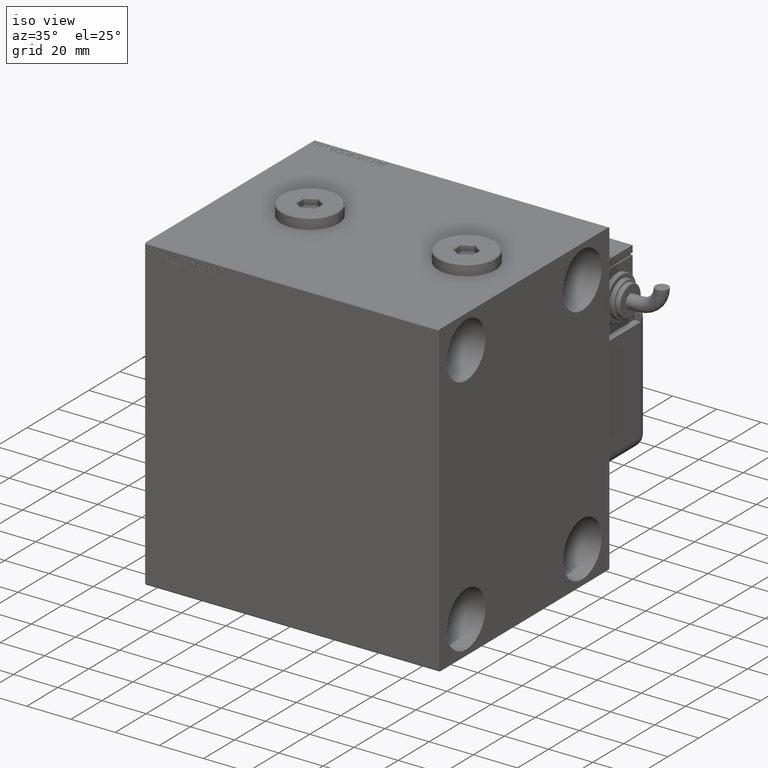
[diagram: clean part render]
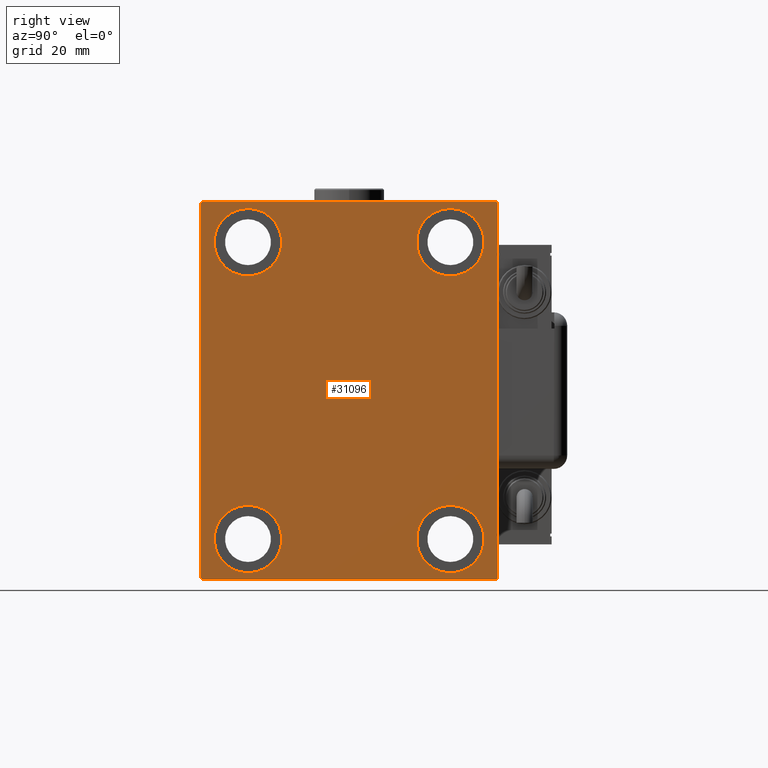
[diagram: tour spotlight — one face highlighted and labeled with its STEP entity id]
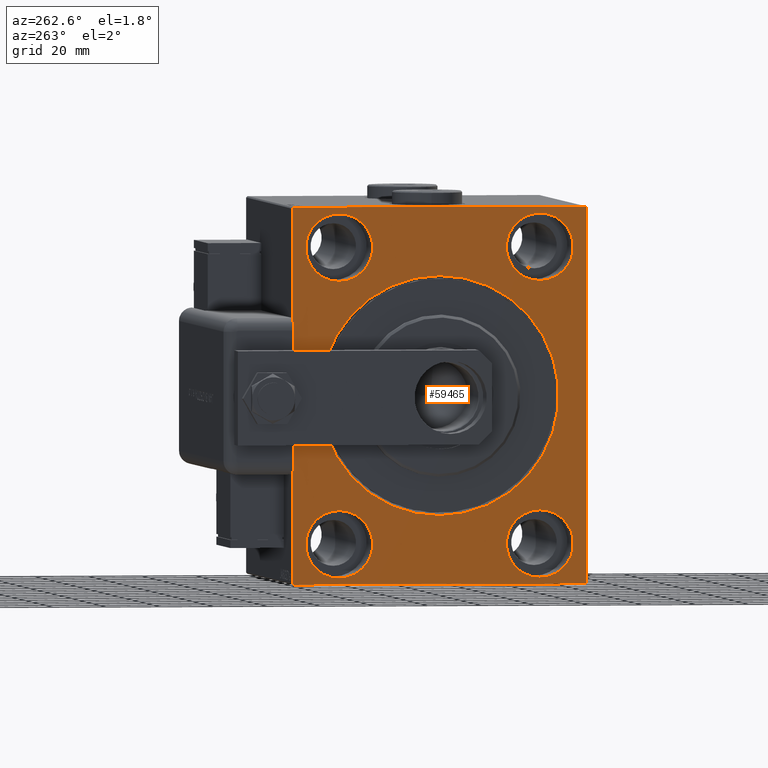
[diagram: tour spotlight — one face highlighted and labeled with its STEP entity id]
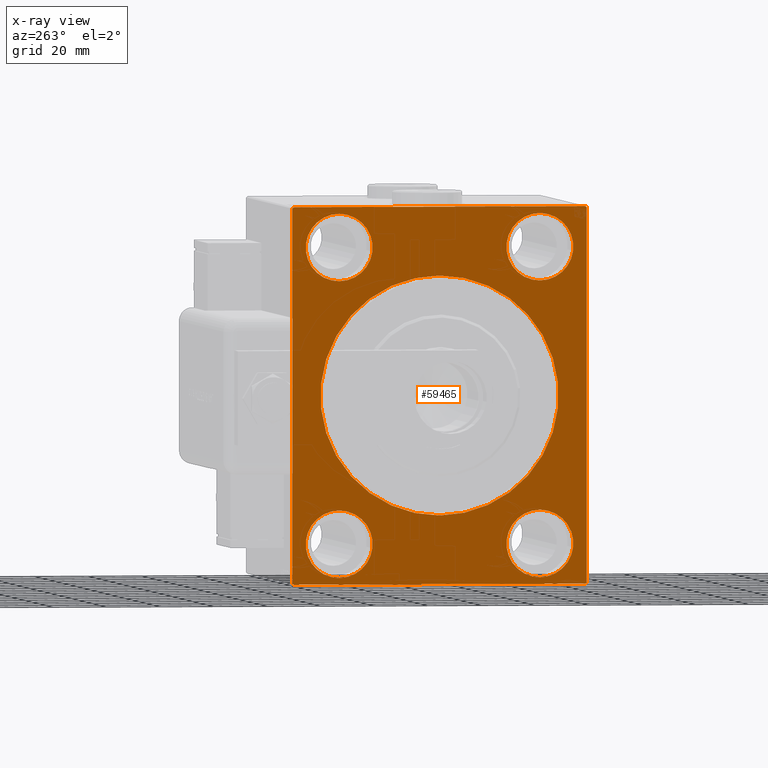
[diagram: x-ray of the same camera — body ghosted, this tour face saturated]
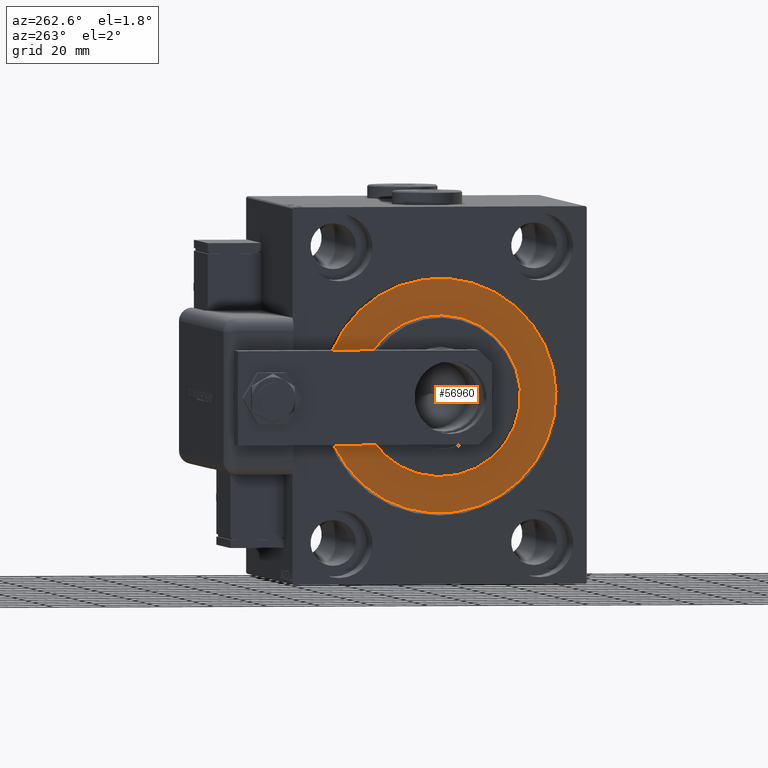
[diagram: tour spotlight — one face highlighted and labeled with its STEP entity id]
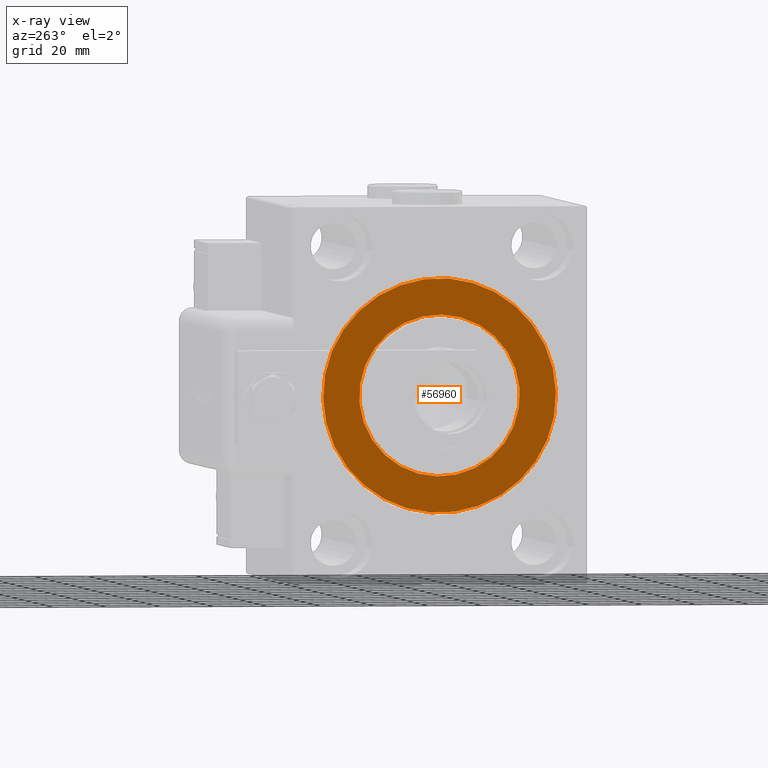
[diagram: x-ray of the same camera — body ghosted, this tour face saturated]
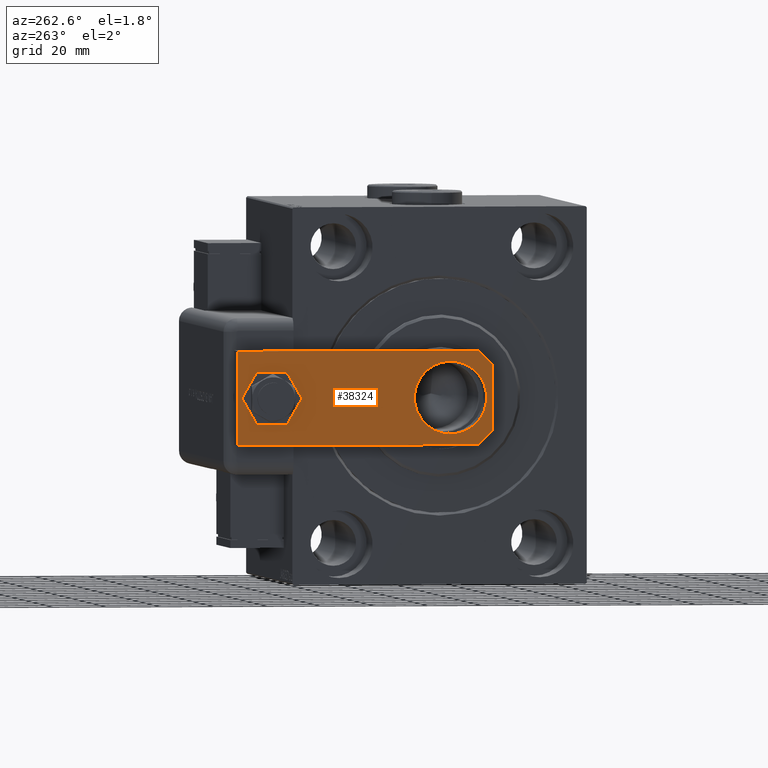
[diagram: tour spotlight — one face highlighted and labeled with its STEP entity id]
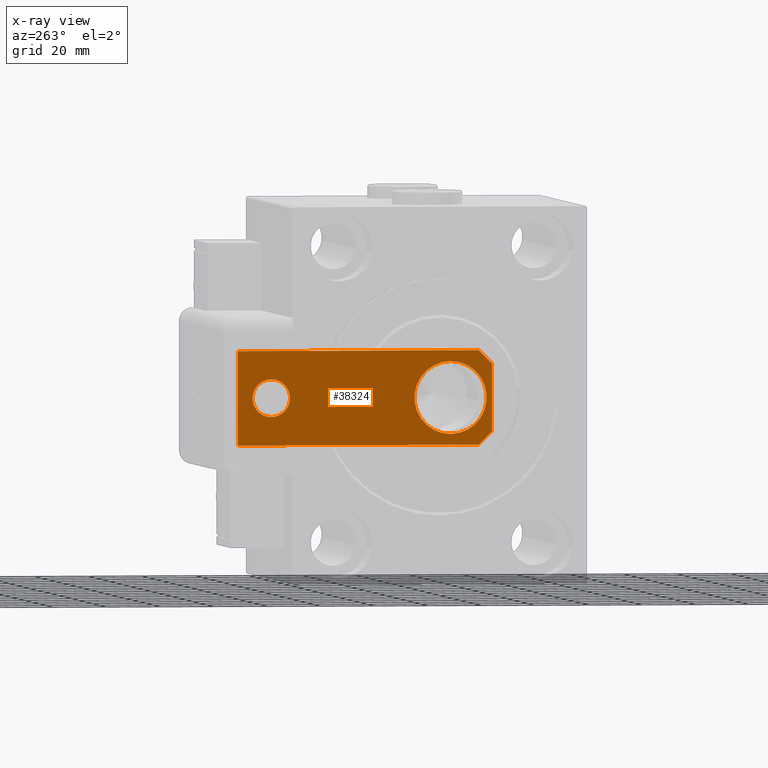
[diagram: x-ray of the same camera — body ghosted, this tour face saturated]
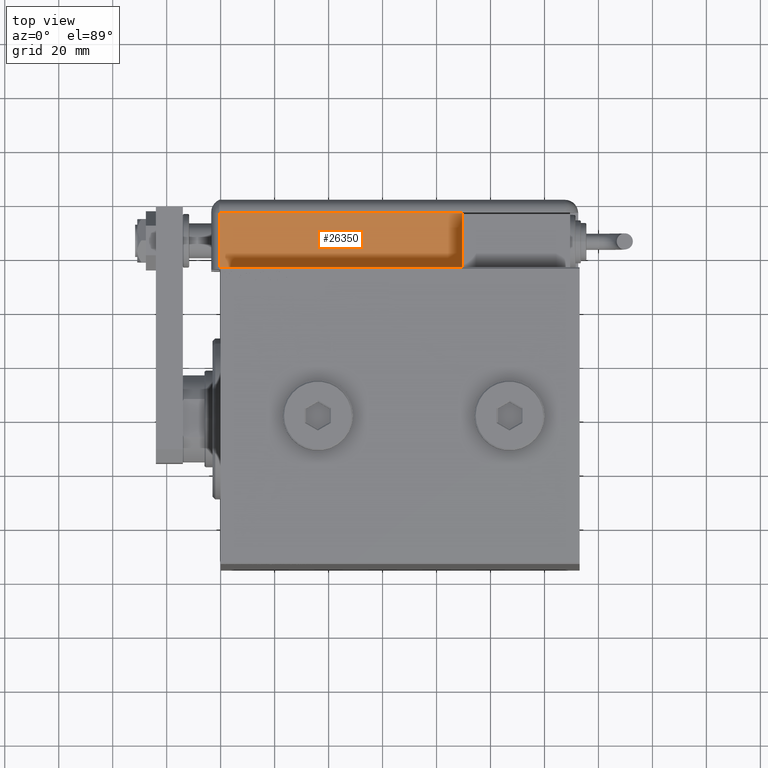
[diagram: tour spotlight — one face highlighted and labeled with its STEP entity id]
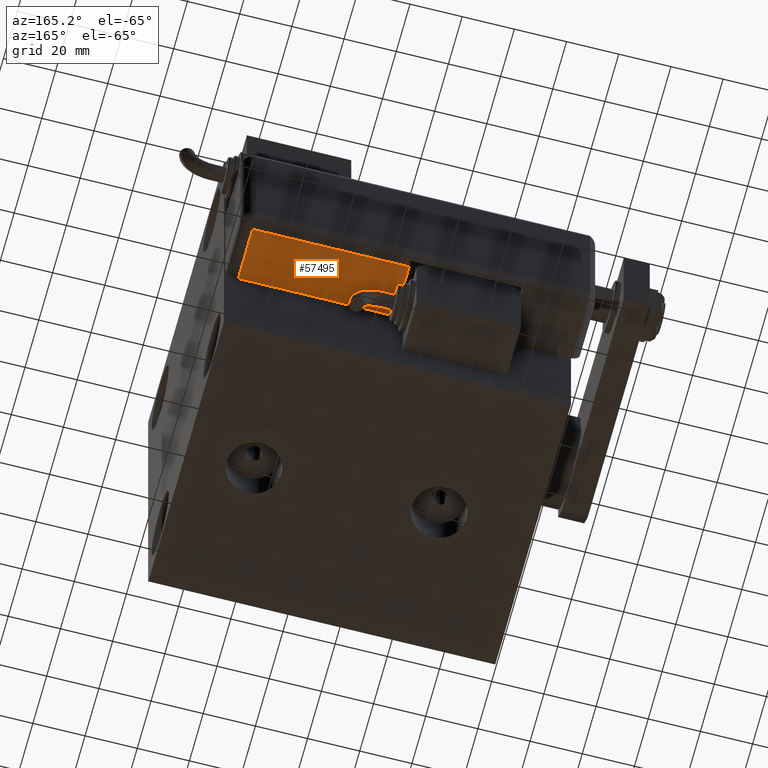
[diagram: tour spotlight — one face highlighted and labeled with its STEP entity id]
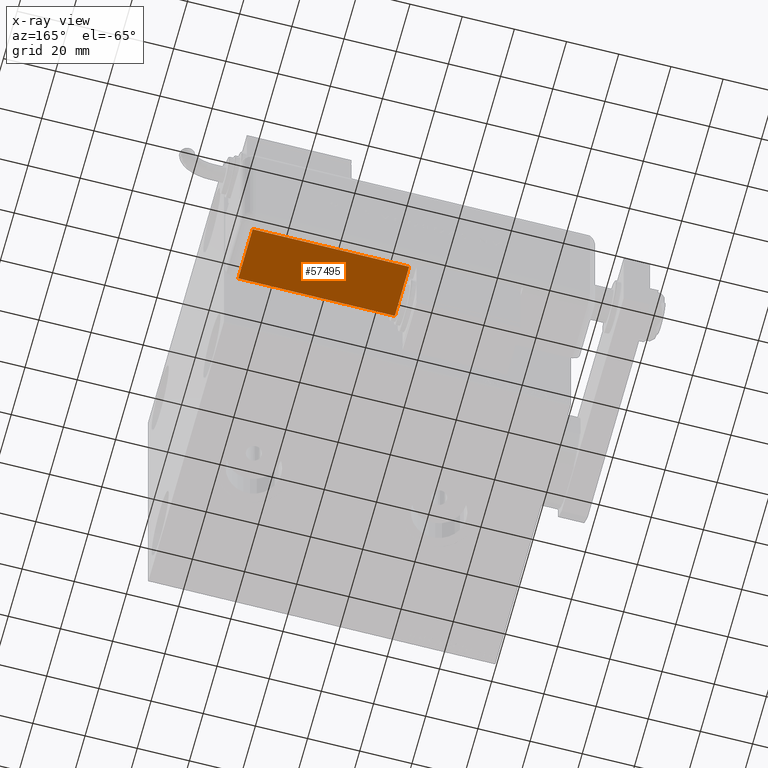
[diagram: x-ray of the same camera — body ghosted, this tour face saturated]
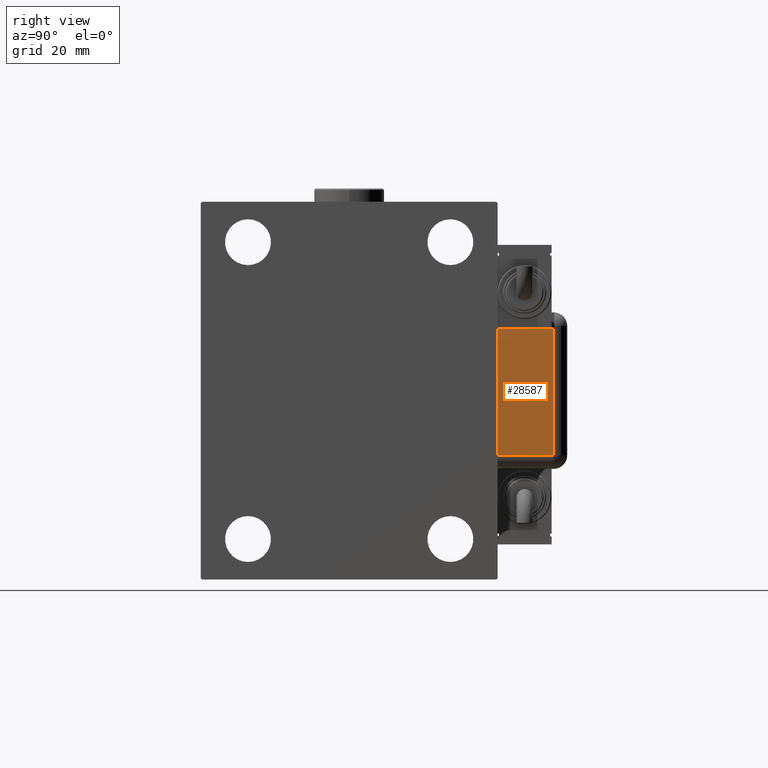
[diagram: tour spotlight — one face highlighted and labeled with its STEP entity id]
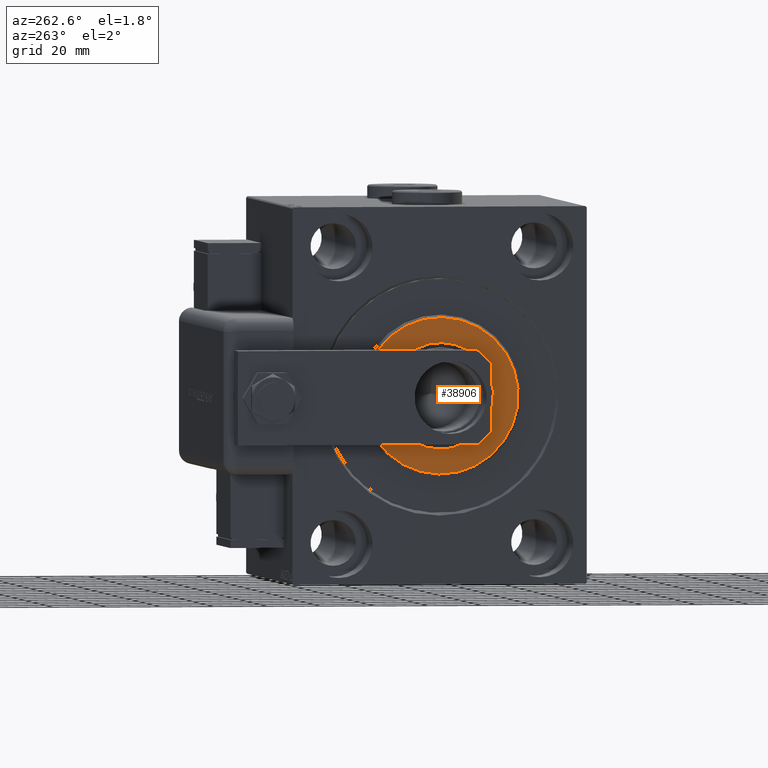
[diagram: tour spotlight — one face highlighted and labeled with its STEP entity id]
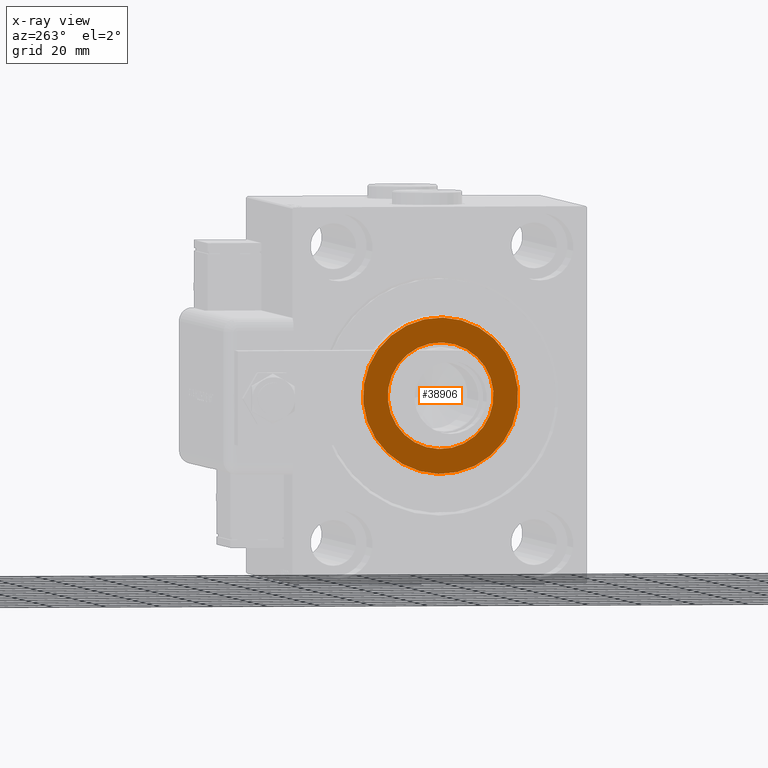
[diagram: x-ray of the same camera — body ghosted, this tour face saturated]
A machine part: a face-by-face anatomy tour. The part has 1303 B-rep faces; the first image is the clean iso view, then the 8 largest visible faces are spotlighted one at a time (largest first), each with its STEP entity span.

Face 1 — right view, entity #31096. In plain terms, the highlighted planar face has unit normal (1, 0, 0).
Definition (entity closure, byte-faithful):
#541 = VERTEX_POINT ( 'NONE', #19050 ) ;
#734 = ORIENTED_EDGE ( 'NONE', *, *, #57172, .T. ) ;
#916 = CARTESIAN_POINT ( 'NONE',  ( 133.0000000000000000, -62.25000000000078160, -62.24999999999904787 ) ) ;
#1437 = EDGE_CURVE ( 'NONE', #20519, #36983, #35453, .T. ) ;
#1727 = ORIENTED_EDGE ( 'NONE', *, *, #50785, .T. ) ;
#1778 = CARTESIAN_POINT ( 'NONE',  ( 133.0000000000000000, -37.50000000000000711, 55.00000000000000711 ) ) ;
#2067 = CARTESIAN_POINT ( 'NONE',  ( 133.0000000000000000, -37.50000000000002132, -42.49999999999999289 ) ) ;
#2233 = AXIS2_PLACEMENT_3D ( 'NONE', #22329, #41515, #8135 ) ;
#2308 = EDGE_CURVE ( 'NONE', #36307, #60933, #51118, .T. ) ;
#2986 = ORIENTED_EDGE ( 'NONE', *, *, #22204, .T. ) ;
#3237 = CARTESIAN_POINT ( 'NONE',  ( 133.0000000000000000, -55.00000000000000711, 69.99999999999998579 ) ) ;
#3801 = AXIS2_PLACEMENT_3D ( 'NONE', #57442, #51892, #56840 ) ;
#3866 = AXIS2_PLACEMENT_3D ( 'NONE', #6860, #34688, #44273 ) ;
#4663 = CARTESIAN_POINT ( 'NONE',  ( 133.0000000000000000, 62.24999999999997868, 62.24999999999997868 ) ) ;
#5016 = ORIENTED_EDGE ( 'NONE', *, *, #43304, .T. ) ;
#5248 = DIRECTION ( 'NONE',  ( 0.000000000000000000, 0.000000000000000000, -1.000000000000000000 ) ) ;
#5714 = EDGE_CURVE ( 'NONE', #60184, #30117, #54109, .T. ) ;
#5820 = ORIENTED_EDGE ( 'NONE', *, *, #23462, .T. ) ;
#6168 = ORIENTED_EDGE ( 'NONE', *, *, #26679, .T. ) ;
#6295 = CIRCLE ( 'NONE', #37893, 12.49999999999999645 ) ;
#6752 = VECTOR ( 'NONE', #47194, 1000.000000000000114 ) ;
#6860 = CARTESIAN_POINT ( 'NONE',  ( 133.0000000000000000, 37.50000000000000711, 55.00000000000000711 ) ) ;
#6890 = LINE ( 'NONE', #57892, #31676 ) ;
#7120 = DIRECTION ( 'NONE',  ( 0.000000000000000000, 0.000000000000000000, 1.000000000000000000 ) ) ;
#8135 = DIRECTION ( 'NONE',  ( 0.000000000000000000, 0.000000000000000000, 1.000000000000000000 ) ) ;
#8465 = VERTEX_POINT ( 'NONE', #60051 ) ;
#9282 = CARTESIAN_POINT ( 'NONE',  ( 133.0000000000000000, 37.50000000000000711, 42.50000000000000711 ) ) ;
#9881 = FACE_BOUND ( 'NONE', #42668, .T. ) ;
#10182 = VERTEX_POINT ( 'NONE', #53094 ) ;
#10427 = DIRECTION ( 'NONE',  ( -1.000000000000000000, -0.000000000000000000, -0.000000000000000000 ) ) ;
#11024 = FACE_BOUND ( 'NONE', #56641, .T. ) ;
#11213 = EDGE_CURVE ( 'NONE', #29062, #39309, #17912, .T. ) ;
#13572 = DIRECTION ( 'NONE',  ( 0.000000000000000000, -1.000000000000000000, -1.261617073437677999E-16 ) ) ;
#13624 = DIRECTION ( 'NONE',  ( -0.000000000000000000, -0.7071067811865474617, 0.7071067811865474617 ) ) ;
#14090 = AXIS2_PLACEMENT_3D ( 'NONE', #21583, #45105, #54061 ) ;
#14867 = EDGE_LOOP ( 'NONE', ( #17118, #46507 ) ) ;
#15252 = ORIENTED_EDGE ( 'NONE', *, *, #18363, .T. ) ;
#15539 = DIRECTION ( 'NONE',  ( 0.000000000000000000, 1.000000000000000000, 2.523234146875355012E-16 ) ) ;
#16147 = CARTESIAN_POINT ( 'NONE',  ( 133.0000000000000000, 55.00000000000002132, -70.00000000000000000 ) ) ;
#16730 = ORIENTED_EDGE ( 'NONE', *, *, #2308, .T. ) ;
#16984 = EDGE_LOOP ( 'NONE', ( #32472, #35025, #16730, #6168, #734, #59617, #5016, #15252 ) ) ;
#17044 = AXIS2_PLACEMENT_3D ( 'NONE', #53058, #18238, #37103 ) ;
#17118 = ORIENTED_EDGE ( 'NONE', *, *, #25347, .T. ) ;
#17590 = CARTESIAN_POINT ( 'NONE',  ( 133.0000000000000000, -37.50000000000002132, -54.99999999999999289 ) ) ;
#17912 = CIRCLE ( 'NONE', #21879, 12.49999999999999645 ) ;
#18238 = DIRECTION ( 'NONE',  ( -1.000000000000000000, -0.000000000000000000, -0.000000000000000000 ) ) ;
#18304 = VERTEX_POINT ( 'NONE', #54447 ) ;
#18363 = EDGE_CURVE ( 'NONE', #8465, #42375, #23794, .T. ) ;
#18441 = DIRECTION ( 'NONE',  ( -1.000000000000000000, -0.000000000000000000, -0.000000000000000000 ) ) ;
#18838 = FACE_BOUND ( 'NONE', #25366, .T. ) ;
#19044 = LINE ( 'NONE', #41963, #6752 ) ;
#19050 = CARTESIAN_POINT ( 'NONE',  ( 133.0000000000000000, -54.50000000000003553, 69.99999999999998579 ) ) ;
#20214 = AXIS2_PLACEMENT_3D ( 'NONE', #38317, #47592, #5248 ) ;
#20519 = VERTEX_POINT ( 'NONE', #59821 ) ;
#20544 = VECTOR ( 'NONE', #35315, 1000.000000000000000 ) ;
#21583 = CARTESIAN_POINT ( 'NONE',  ( 133.0000000000000000, -37.50000000000002132, -54.99999999999999289 ) ) ;
#21879 = AXIS2_PLACEMENT_3D ( 'NONE', #49461, #18441, #7120 ) ;
#21892 = VECTOR ( 'NONE', #13572, 1000.000000000000000 ) ;
#22204 = EDGE_CURVE ( 'NONE', #56485, #18304, #40779, .T. ) ;
#22230 = LINE ( 'NONE', #41114, #21892 ) ;
#22329 = CARTESIAN_POINT ( 'NONE',  ( 133.0000000000000000, -37.50000000000000711, 55.00000000000000711 ) ) ;
#23462 = EDGE_CURVE ( 'NONE', #18304, #56485, #6295, .T. ) ;
#23794 = LINE ( 'NONE', #4663, #28073 ) ;
#23964 = ORIENTED_EDGE ( 'NONE', *, *, #24932, .T. ) ;
#24155 = CARTESIAN_POINT ( 'NONE',  ( 133.0000000000000000, 37.49999999999997868, -42.49999999999999289 ) ) ;
#24731 = CARTESIAN_POINT ( 'NONE',  ( 133.0000000000000000, -54.50000000000000711, -70.00000000000002842 ) ) ;
#24932 = EDGE_CURVE ( 'NONE', #54171, #10182, #49616, .T. ) ;
#25347 = EDGE_CURVE ( 'NONE', #39309, #29062, #30854, .T. ) ;
#25366 = EDGE_LOOP ( 'NONE', ( #5820, #2986 ) ) ;
#25554 = DIRECTION ( 'NONE',  ( 0.000000000000000000, 0.000000000000000000, 1.000000000000000000 ) ) ;
#25720 = VECTOR ( 'NONE', #50701, 1000.000000000000000 ) ;
#25950 = VECTOR ( 'NONE', #57774, 999.9999999999998863 ) ;
#26406 = DIRECTION ( 'NONE',  ( 0.000000000000000000, 0.000000000000000000, -1.000000000000000000 ) ) ;
#26679 = EDGE_CURVE ( 'NONE', #60933, #43599, #52524, .T. ) ;
#28073 = VECTOR ( 'NONE', #13624, 1000.000000000000114 ) ;
#29062 = VERTEX_POINT ( 'NONE', #24155 ) ;
#29295 = CARTESIAN_POINT ( 'NONE',  ( 133.0000000000000000, 54.50000000000004974, -70.00000000000000000 ) ) ;
#29795 = ORIENTED_EDGE ( 'NONE', *, *, #52462, .T. ) ;
#30117 = VERTEX_POINT ( 'NONE', #51928 ) ;
#30292 = CARTESIAN_POINT ( 'NONE',  ( 133.0000000000000000, -37.50000000000000711, 67.50000000000000000 ) ) ;
#30854 = CIRCLE ( 'NONE', #17044, 12.49999999999999645 ) ;
#31096 = ADVANCED_FACE ( 'NONE', ( #34830, #9881, #11024, #18838, #49342 ), #57161, .T. ) ;
#31676 = VECTOR ( 'NONE', #15539, 1000.000000000000000 ) ;
#32472 = ORIENTED_EDGE ( 'NONE', *, *, #49745, .T. ) ;
#32695 = ORIENTED_EDGE ( 'NONE', *, *, #1437, .T. ) ;
#34688 = DIRECTION ( 'NONE',  ( -1.000000000000000000, -0.000000000000000000, -0.000000000000000000 ) ) ;
#34830 = FACE_BOUND ( 'NONE', #14867, .T. ) ;
#35025 = ORIENTED_EDGE ( 'NONE', *, *, #50048, .T. ) ;
#35315 = DIRECTION ( 'NONE',  ( 0.000000000000000000, -1.982541115402065110E-16, 1.000000000000000000 ) ) ;
#35380 = CIRCLE ( 'NONE', #3801, 12.49999999999999645 ) ;
#35453 = CIRCLE ( 'NONE', #3866, 12.49999999999999645 ) ;
#36307 = VERTEX_POINT ( 'NONE', #48589 ) ;
#36460 = DIRECTION ( 'NONE',  ( -1.000000000000000000, -0.000000000000000000, -0.000000000000000000 ) ) ;
#36983 = VERTEX_POINT ( 'NONE', #9282 ) ;
#37103 = DIRECTION ( 'NONE',  ( 0.000000000000000000, 0.000000000000000000, 1.000000000000000000 ) ) ;
#37893 = AXIS2_PLACEMENT_3D ( 'NONE', #17590, #36460, #47254 ) ;
#38317 = CARTESIAN_POINT ( 'NONE',  ( 133.0000000000000000, 0.000000000000000000, 0.000000000000000000 ) ) ;
#39309 = VERTEX_POINT ( 'NONE', #41858 ) ;
#40427 = AXIS2_PLACEMENT_3D ( 'NONE', #1778, #10427, #25554 ) ;
#40779 = CIRCLE ( 'NONE', #14090, 12.49999999999999645 ) ;
#41114 = CARTESIAN_POINT ( 'NONE',  ( 133.0000000000000000, 54.99999999999999289, 70.00000000000000000 ) ) ;
#41133 = CARTESIAN_POINT ( 'NONE',  ( 133.0000000000000000, 62.25000000000153477, -62.24999999999808153 ) ) ;
#41515 = DIRECTION ( 'NONE',  ( -1.000000000000000000, -0.000000000000000000, -0.000000000000000000 ) ) ;
#41858 = CARTESIAN_POINT ( 'NONE',  ( 133.0000000000000000, 37.49999999999997868, -67.49999999999998579 ) ) ;
#41963 = CARTESIAN_POINT ( 'NONE',  ( 133.0000000000000000, -62.25000000000000711, 62.25000000000000711 ) ) ;
#42375 = VERTEX_POINT ( 'NONE', #56769 ) ;
#42668 = EDGE_LOOP ( 'NONE', ( #29795, #23964 ) ) ;
#43304 = EDGE_CURVE ( 'NONE', #30117, #8465, #44294, .T. ) ;
#43599 = VERTEX_POINT ( 'NONE', #24731 ) ;
#44273 = DIRECTION ( 'NONE',  ( 0.000000000000000000, 0.000000000000000000, 1.000000000000000000 ) ) ;
#44294 = LINE ( 'NONE', #16147, #20544 ) ;
#45105 = DIRECTION ( 'NONE',  ( -1.000000000000000000, -0.000000000000000000, -0.000000000000000000 ) ) ;
#46507 = ORIENTED_EDGE ( 'NONE', *, *, #11213, .T. ) ;
#47194 = DIRECTION ( 'NONE',  ( 0.000000000000000000, -0.7071067811865474617, -0.7071067811865474617 ) ) ;
#47254 = DIRECTION ( 'NONE',  ( 0.000000000000000000, 0.000000000000000000, 1.000000000000000000 ) ) ;
#47592 = DIRECTION ( 'NONE',  ( 1.000000000000000000, 0.000000000000000000, 0.000000000000000000 ) ) ;
#48329 = VECTOR ( 'NONE', #26406, 1000.000000000000000 ) ;
#48589 = CARTESIAN_POINT ( 'NONE',  ( 133.0000000000000000, -55.00000000000000711, 69.50000000000001421 ) ) ;
#49342 = FACE_OUTER_BOUND ( 'NONE', #16984, .T. ) ;
#49461 = CARTESIAN_POINT ( 'NONE',  ( 133.0000000000000000, 37.49999999999997868, -54.99999999999999289 ) ) ;
#49616 = CIRCLE ( 'NONE', #2233, 12.49999999999999645 ) ;
#49745 = EDGE_CURVE ( 'NONE', #42375, #541, #22230, .T. ) ;
#50048 = EDGE_CURVE ( 'NONE', #541, #36307, #19044, .T. ) ;
#50701 = DIRECTION ( 'NONE',  ( -0.000000000000000000, 0.7071067811865279218, 0.7071067811865671127 ) ) ;
#50785 = EDGE_CURVE ( 'NONE', #36983, #20519, #35380, .T. ) ;
#51118 = LINE ( 'NONE', #3237, #48329 ) ;
#51892 = DIRECTION ( 'NONE',  ( -1.000000000000000000, -0.000000000000000000, -0.000000000000000000 ) ) ;
#51928 = CARTESIAN_POINT ( 'NONE',  ( 133.0000000000000000, 55.00000000000002132, -69.50000000000000000 ) ) ;
#52462 = EDGE_CURVE ( 'NONE', #10182, #54171, #61091, .T. ) ;
#52524 = LINE ( 'NONE', #916, #25950 ) ;
#52582 = CARTESIAN_POINT ( 'NONE',  ( 133.0000000000000000, -55.00000000000000711, -69.50000000000001421 ) ) ;
#53058 = CARTESIAN_POINT ( 'NONE',  ( 133.0000000000000000, 37.49999999999997868, -54.99999999999999289 ) ) ;
#53094 = CARTESIAN_POINT ( 'NONE',  ( 133.0000000000000000, -37.50000000000000711, 42.50000000000000711 ) ) ;
#54061 = DIRECTION ( 'NONE',  ( 0.000000000000000000, 0.000000000000000000, 1.000000000000000000 ) ) ;
#54109 = LINE ( 'NONE', #41133, #25720 ) ;
#54171 = VERTEX_POINT ( 'NONE', #30292 ) ;
#54447 = CARTESIAN_POINT ( 'NONE',  ( 133.0000000000000000, -37.50000000000002132, -67.49999999999998579 ) ) ;
#56485 = VERTEX_POINT ( 'NONE', #2067 ) ;
#56641 = EDGE_LOOP ( 'NONE', ( #1727, #32695 ) ) ;
#56769 = CARTESIAN_POINT ( 'NONE',  ( 133.0000000000000000, 54.49999999999996447, 70.00000000000000000 ) ) ;
#56840 = DIRECTION ( 'NONE',  ( 0.000000000000000000, 0.000000000000000000, 1.000000000000000000 ) ) ;
#57161 = PLANE ( 'NONE',  #20214 ) ;
#57172 = EDGE_CURVE ( 'NONE', #43599, #60184, #6890, .T. ) ;
#57442 = CARTESIAN_POINT ( 'NONE',  ( 133.0000000000000000, 37.50000000000000711, 55.00000000000000711 ) ) ;
#57774 = DIRECTION ( 'NONE',  ( -0.000000000000000000, 0.7071067811865376918, -0.7071067811865574537 ) ) ;
#57892 = CARTESIAN_POINT ( 'NONE',  ( 133.0000000000000000, -55.00000000000000711, -70.00000000000002842 ) ) ;
#59617 = ORIENTED_EDGE ( 'NONE', *, *, #5714, .T. ) ;
#59821 = CARTESIAN_POINT ( 'NONE',  ( 133.0000000000000000, 37.50000000000000711, 67.50000000000000000 ) ) ;
#60051 = CARTESIAN_POINT ( 'NONE',  ( 133.0000000000000000, 54.99999999999999289, 69.49999999999997158 ) ) ;
#60184 = VERTEX_POINT ( 'NONE', #29295 ) ;
#60933 = VERTEX_POINT ( 'NONE', #52582 ) ;
#61091 = CIRCLE ( 'NONE', #40427, 12.49999999999999645 ) ;

Face 2 — auxiliary view, entity #59465. An x-ray twin of the same camera follows (body ghosted, this face saturated) — the face is partly hidden behind the body. In plain terms, the highlighted planar face has unit normal (1, 0, 0).
Definition (entity closure, byte-faithful):
#90 = CARTESIAN_POINT ( 'NONE',  ( 0.000000000000000000, -55.00000000000000711, 69.50000000000001421 ) ) ;
#636 = EDGE_LOOP ( 'NONE', ( #33425, #38375 ) ) ;
#1722 = LINE ( 'NONE', #25495, #27454 ) ;
#2479 = VERTEX_POINT ( 'NONE', #22598 ) ;
#3034 = DIRECTION ( 'NONE',  ( -1.000000000000000000, 0.000000000000000000, 0.000000000000000000 ) ) ;
#3129 = DIRECTION ( 'NONE',  ( -1.000000000000000000, 0.000000000000000000, 0.000000000000000000 ) ) ;
#4073 = DIRECTION ( 'NONE',  ( 0.000000000000000000, 1.000000000000000000, 2.523234146875355012E-16 ) ) ;
#4616 = CARTESIAN_POINT ( 'NONE',  ( 0.000000000000000000, 37.49999999999997868, -67.49999999999998579 ) ) ;
#5184 = CIRCLE ( 'NONE', #25921, 12.49999999999999645 ) ;
#6805 = VERTEX_POINT ( 'NONE', #8944 ) ;
#6952 = CARTESIAN_POINT ( 'NONE',  ( 0.000000000000000000, -37.50000000000002132, -54.99999999999999289 ) ) ;
#7022 = EDGE_CURVE ( 'NONE', #58593, #56776, #24647, .T. ) ;
#7195 = CARTESIAN_POINT ( 'NONE',  ( 0.000000000000000000, -55.00000000000000711, -69.50000000000001421 ) ) ;
#7428 = CIRCLE ( 'NONE', #44948, 12.49999999999999645 ) ;
#7775 = VECTOR ( 'NONE', #50931, 1000.000000000000000 ) ;
#8100 = CARTESIAN_POINT ( 'NONE',  ( 0.000000000000000000, -55.00000000000000711, -70.00000000000002842 ) ) ;
#8944 = CARTESIAN_POINT ( 'NONE',  ( 0.000000000000000000, 55.00000000000002132, -69.50000000000000000 ) ) ;
#9238 = VECTOR ( 'NONE', #26832, 1000.000000000000000 ) ;
#9627 = EDGE_CURVE ( 'NONE', #39664, #60606, #60277, .T. ) ;
#9729 = VERTEX_POINT ( 'NONE', #45892 ) ;
#9867 = CARTESIAN_POINT ( 'NONE',  ( 0.000000000000000000, 37.50000000000000711, 42.50000000000000711 ) ) ;
#10139 = PLANE ( 'NONE',  #46604 ) ;
#10254 = ORIENTED_EDGE ( 'NONE', *, *, #44664, .F. ) ;
#10440 = DIRECTION ( 'NONE',  ( 0.000000000000000000, 0.000000000000000000, -1.000000000000000000 ) ) ;
#10601 = EDGE_CURVE ( 'NONE', #56776, #58593, #32705, .T. ) ;
#10626 = VECTOR ( 'NONE', #57232, 1000.000000000000000 ) ;
#10927 = AXIS2_PLACEMENT_3D ( 'NONE', #60741, #13165, #37257 ) ;
#11199 = LINE ( 'NONE', #33461, #38474 ) ;
#11465 = ORIENTED_EDGE ( 'NONE', *, *, #41946, .F. ) ;
#11735 = VERTEX_POINT ( 'NONE', #31000 ) ;
#12907 = VERTEX_POINT ( 'NONE', #43373 ) ;
#13165 = DIRECTION ( 'NONE',  ( 1.000000000000000000, 0.000000000000000000, 0.000000000000000000 ) ) ;
#13208 = CARTESIAN_POINT ( 'NONE',  ( 0.000000000000000000, 54.50000000000004974, -70.00000000000000000 ) ) ;
#13725 = CARTESIAN_POINT ( 'NONE',  ( 0.000000000000000000, 37.50000000000000711, 55.00000000000000711 ) ) ;
#14764 = FACE_BOUND ( 'NONE', #59483, .T. ) ;
#15373 = FACE_BOUND ( 'NONE', #50775, .T. ) ;
#15602 = DIRECTION ( 'NONE',  ( 0.000000000000000000, 0.000000000000000000, 1.000000000000000000 ) ) ;
#15912 = CARTESIAN_POINT ( 'NONE',  ( 0.000000000000000000, 37.49999999999997868, -54.99999999999999289 ) ) ;
#15918 = AXIS2_PLACEMENT_3D ( 'NONE', #13725, #51736, #24187 ) ;
#16348 = ORIENTED_EDGE ( 'NONE', *, *, #42801, .T. ) ;
#16936 = CARTESIAN_POINT ( 'NONE',  ( 0.000000000000000000, 55.00000000000002132, -70.00000000000000000 ) ) ;
#18246 = CARTESIAN_POINT ( 'NONE',  ( 0.000000000000000000, 37.49999999999997868, -54.99999999999999289 ) ) ;
#18586 = CARTESIAN_POINT ( 'NONE',  ( 0.000000000000000000, -37.50000000000002132, -67.49999999999998579 ) ) ;
#18796 = FACE_OUTER_BOUND ( 'NONE', #29404, .T. ) ;
#19292 = ORIENTED_EDGE ( 'NONE', *, *, #48871, .F. ) ;
#19392 = CIRCLE ( 'NONE', #46082, 44.50000000000001421 ) ;
#19396 = CARTESIAN_POINT ( 'NONE',  ( 0.000000000000000000, 0.000000000000000000, 0.000000000000000000 ) ) ;
#19829 = VERTEX_POINT ( 'NONE', #39960 ) ;
#20081 = ORIENTED_EDGE ( 'NONE', *, *, #42509, .T. ) ;
#20383 = EDGE_CURVE ( 'NONE', #19829, #9729, #5184, .T. ) ;
#20453 = DIRECTION ( 'NONE',  ( 0.000000000000000000, -0.7071067811865279218, -0.7071067811865671127 ) ) ;
#20663 = ORIENTED_EDGE ( 'NONE', *, *, #21213, .F. ) ;
#20915 = CIRCLE ( 'NONE', #60376, 12.49999999999999645 ) ;
#20968 = CIRCLE ( 'NONE', #39740, 12.49999999999999645 ) ;
#21213 = EDGE_CURVE ( 'NONE', #35857, #33635, #20968, .T. ) ;
#21560 = LINE ( 'NONE', #16936, #7775 ) ;
#22071 = DIRECTION ( 'NONE',  ( -1.000000000000000000, 0.000000000000000000, 0.000000000000000000 ) ) ;
#22292 = ORIENTED_EDGE ( 'NONE', *, *, #9627, .F. ) ;
#22376 = CARTESIAN_POINT ( 'NONE',  ( 0.000000000000000000, -37.50000000000002132, -54.99999999999999289 ) ) ;
#22598 = CARTESIAN_POINT ( 'NONE',  ( 0.000000000000000000, -55.00000000000000711, 69.50000000000001421 ) ) ;
#23261 = ORIENTED_EDGE ( 'NONE', *, *, #32023, .F. ) ;
#23546 = CARTESIAN_POINT ( 'NONE',  ( 0.000000000000000000, -55.00000000000000711, 69.99999999999998579 ) ) ;
#24187 = DIRECTION ( 'NONE',  ( 0.000000000000000000, 0.000000000000000000, 1.000000000000000000 ) ) ;
#24388 = ORIENTED_EDGE ( 'NONE', *, *, #26831, .F. ) ;
#24487 = ORIENTED_EDGE ( 'NONE', *, *, #53132, .T. ) ;
#24598 = CARTESIAN_POINT ( 'NONE',  ( 0.000000000000000000, -37.50000000000000711, 55.00000000000000711 ) ) ;
#24647 = CIRCLE ( 'NONE', #38492, 12.49999999999999645 ) ;
#25495 = CARTESIAN_POINT ( 'NONE',  ( 0.000000000000000000, -54.50000000000000711, -70.00000000000002842 ) ) ;
#25921 = AXIS2_PLACEMENT_3D ( 'NONE', #24598, #52127, #43479 ) ;
#25924 = VERTEX_POINT ( 'NONE', #50624 ) ;
#26255 = DIRECTION ( 'NONE',  ( 0.000000000000000000, 0.000000000000000000, 1.000000000000000000 ) ) ;
#26693 = VECTOR ( 'NONE', #4073, 1000.000000000000000 ) ;
#26831 = EDGE_CURVE ( 'NONE', #35649, #12907, #53753, .T. ) ;
#26832 = DIRECTION ( 'NONE',  ( 0.000000000000000000, -1.000000000000000000, -1.261617073437677999E-16 ) ) ;
#27454 = VECTOR ( 'NONE', #54239, 999.9999999999998863 ) ;
#29219 = DIRECTION ( 'NONE',  ( -1.000000000000000000, 0.000000000000000000, 0.000000000000000000 ) ) ;
#29404 = EDGE_LOOP ( 'NONE', ( #11465, #52653, #24388, #20081, #10254, #24487, #40783, #16348 ) ) ;
#29812 = AXIS2_PLACEMENT_3D ( 'NONE', #15912, #29219, #38509 ) ;
#29982 = CARTESIAN_POINT ( 'NONE',  ( 0.000000000000000000, 54.49999999999996447, 70.00000000000000000 ) ) ;
#30889 = CARTESIAN_POINT ( 'NONE',  ( 0.000000000000000000, -37.50000000000000711, 55.00000000000000711 ) ) ;
#30942 = CARTESIAN_POINT ( 'NONE',  ( 0.000000000000000000, -54.50000000000000711, -70.00000000000002842 ) ) ;
#31000 = CARTESIAN_POINT ( 'NONE',  ( 0.000000000000000000, 0.000000000000000000, 44.50000000000001421 ) ) ;
#31636 = LINE ( 'NONE', #90, #56045 ) ;
#32023 = EDGE_CURVE ( 'NONE', #60606, #39664, #7428, .T. ) ;
#32122 = ORIENTED_EDGE ( 'NONE', *, *, #35012, .T. ) ;
#32489 = LINE ( 'NONE', #8100, #26693 ) ;
#32705 = CIRCLE ( 'NONE', #15918, 12.49999999999999645 ) ;
#32841 = EDGE_LOOP ( 'NONE', ( #32122, #47103 ) ) ;
#33425 = ORIENTED_EDGE ( 'NONE', *, *, #10601, .F. ) ;
#33461 = CARTESIAN_POINT ( 'NONE',  ( 0.000000000000000000, 55.00000000000002132, -69.50000000000000000 ) ) ;
#33510 = DIRECTION ( 'NONE',  ( 0.000000000000000000, 0.000000000000000000, -1.000000000000000000 ) ) ;
#33635 = VERTEX_POINT ( 'NONE', #4616 ) ;
#34046 = EDGE_LOOP ( 'NONE', ( #23261, #22292 ) ) ;
#34592 = CIRCLE ( 'NONE', #10927, 44.50000000000001421 ) ;
#35012 = EDGE_CURVE ( 'NONE', #11735, #45317, #19392, .T. ) ;
#35649 = VERTEX_POINT ( 'NONE', #39772 ) ;
#35857 = VERTEX_POINT ( 'NONE', #52689 ) ;
#36196 = DIRECTION ( 'NONE',  ( 0.000000000000000000, 0.000000000000000000, 1.000000000000000000 ) ) ;
#36409 = DIRECTION ( 'NONE',  ( 0.000000000000000000, 0.000000000000000000, 1.000000000000000000 ) ) ;
#37257 = DIRECTION ( 'NONE',  ( 0.000000000000000000, 0.000000000000000000, -1.000000000000000000 ) ) ;
#37357 = EDGE_CURVE ( 'NONE', #2479, #12907, #31636, .T. ) ;
#37861 = DIRECTION ( 'NONE',  ( 1.000000000000000000, 0.000000000000000000, 0.000000000000000000 ) ) ;
#38375 = ORIENTED_EDGE ( 'NONE', *, *, #7022, .F. ) ;
#38461 = CARTESIAN_POINT ( 'NONE',  ( 0.000000000000000000, 0.000000000000000000, 0.000000000000000000 ) ) ;
#38474 = VECTOR ( 'NONE', #20453, 1000.000000000000000 ) ;
#38492 = AXIS2_PLACEMENT_3D ( 'NONE', #50008, #3034, #36409 ) ;
#38509 = DIRECTION ( 'NONE',  ( 0.000000000000000000, 0.000000000000000000, 1.000000000000000000 ) ) ;
#38580 = FACE_BOUND ( 'NONE', #32841, .T. ) ;
#38819 = DIRECTION ( 'NONE',  ( -1.000000000000000000, 0.000000000000000000, 0.000000000000000000 ) ) ;
#39664 = VERTEX_POINT ( 'NONE', #18586 ) ;
#39740 = AXIS2_PLACEMENT_3D ( 'NONE', #18246, #3129, #36196 ) ;
#39772 = CARTESIAN_POINT ( 'NONE',  ( 0.000000000000000000, 54.49999999999996447, 70.00000000000000000 ) ) ;
#39960 = CARTESIAN_POINT ( 'NONE',  ( 0.000000000000000000, -37.50000000000000711, 42.50000000000000711 ) ) ;
#40305 = VECTOR ( 'NONE', #43286, 1000.000000000000114 ) ;
#40783 = ORIENTED_EDGE ( 'NONE', *, *, #48617, .F. ) ;
#41342 = CARTESIAN_POINT ( 'NONE',  ( 0.000000000000000000, 37.50000000000000711, 67.50000000000000000 ) ) ;
#41946 = EDGE_CURVE ( 'NONE', #2479, #49197, #56938, .T. ) ;
#42046 = VERTEX_POINT ( 'NONE', #30942 ) ;
#42509 = EDGE_CURVE ( 'NONE', #35649, #25924, #48224, .T. ) ;
#42801 = EDGE_CURVE ( 'NONE', #42046, #49197, #1722, .T. ) ;
#43286 = DIRECTION ( 'NONE',  ( -0.000000000000000000, 0.7071067811865474617, -0.7071067811865474617 ) ) ;
#43373 = CARTESIAN_POINT ( 'NONE',  ( 0.000000000000000000, -54.50000000000003553, 69.99999999999998579 ) ) ;
#43479 = DIRECTION ( 'NONE',  ( 0.000000000000000000, 0.000000000000000000, 1.000000000000000000 ) ) ;
#44518 = ORIENTED_EDGE ( 'NONE', *, *, #20383, .F. ) ;
#44664 = EDGE_CURVE ( 'NONE', #6805, #25924, #21560, .T. ) ;
#44948 = AXIS2_PLACEMENT_3D ( 'NONE', #22376, #22071, #49297 ) ;
#45317 = VERTEX_POINT ( 'NONE', #57915 ) ;
#45397 = CARTESIAN_POINT ( 'NONE',  ( 0.000000000000000000, 54.99999999999999289, 70.00000000000000000 ) ) ;
#45429 = DIRECTION ( 'NONE',  ( -1.000000000000000000, 0.000000000000000000, 0.000000000000000000 ) ) ;
#45892 = CARTESIAN_POINT ( 'NONE',  ( 0.000000000000000000, -37.50000000000000711, 67.50000000000000000 ) ) ;
#46082 = AXIS2_PLACEMENT_3D ( 'NONE', #38461, #37861, #33510 ) ;
#46512 = CARTESIAN_POINT ( 'NONE',  ( 0.000000000000000000, -37.50000000000002132, -42.49999999999999289 ) ) ;
#46604 = AXIS2_PLACEMENT_3D ( 'NONE', #19396, #46952, #10440 ) ;
#46952 = DIRECTION ( 'NONE',  ( 1.000000000000000000, 0.000000000000000000, 0.000000000000000000 ) ) ;
#47070 = DIRECTION ( 'NONE',  ( -0.000000000000000000, 0.7071067811865474617, 0.7071067811865474617 ) ) ;
#47103 = ORIENTED_EDGE ( 'NONE', *, *, #55637, .T. ) ;
#47523 = ORIENTED_EDGE ( 'NONE', *, *, #59644, .F. ) ;
#48224 = LINE ( 'NONE', #29982, #40305 ) ;
#48455 = AXIS2_PLACEMENT_3D ( 'NONE', #6952, #38819, #15602 ) ;
#48617 = EDGE_CURVE ( 'NONE', #42046, #56791, #32489, .T. ) ;
#48871 = EDGE_CURVE ( 'NONE', #9729, #19829, #20915, .T. ) ;
#49197 = VERTEX_POINT ( 'NONE', #7195 ) ;
#49297 = DIRECTION ( 'NONE',  ( 0.000000000000000000, 0.000000000000000000, 1.000000000000000000 ) ) ;
#50008 = CARTESIAN_POINT ( 'NONE',  ( 0.000000000000000000, 37.50000000000000711, 55.00000000000000711 ) ) ;
#50624 = CARTESIAN_POINT ( 'NONE',  ( 0.000000000000000000, 54.99999999999999289, 69.49999999999997158 ) ) ;
#50775 = EDGE_LOOP ( 'NONE', ( #19292, #44518 ) ) ;
#50931 = DIRECTION ( 'NONE',  ( 0.000000000000000000, -1.982541115402065110E-16, 1.000000000000000000 ) ) ;
#51736 = DIRECTION ( 'NONE',  ( -1.000000000000000000, 0.000000000000000000, 0.000000000000000000 ) ) ;
#51871 = FACE_BOUND ( 'NONE', #34046, .T. ) ;
#52127 = DIRECTION ( 'NONE',  ( -1.000000000000000000, 0.000000000000000000, 0.000000000000000000 ) ) ;
#52653 = ORIENTED_EDGE ( 'NONE', *, *, #37357, .T. ) ;
#52689 = CARTESIAN_POINT ( 'NONE',  ( 0.000000000000000000, 37.49999999999997868, -42.49999999999999289 ) ) ;
#53132 = EDGE_CURVE ( 'NONE', #6805, #56791, #11199, .T. ) ;
#53753 = LINE ( 'NONE', #45397, #9238 ) ;
#54239 = DIRECTION ( 'NONE',  ( -0.000000000000000000, -0.7071067811865376918, 0.7071067811865574537 ) ) ;
#55637 = EDGE_CURVE ( 'NONE', #45317, #11735, #34592, .T. ) ;
#56045 = VECTOR ( 'NONE', #47070, 1000.000000000000114 ) ;
#56472 = CIRCLE ( 'NONE', #29812, 12.49999999999999645 ) ;
#56776 = VERTEX_POINT ( 'NONE', #41342 ) ;
#56791 = VERTEX_POINT ( 'NONE', #13208 ) ;
#56938 = LINE ( 'NONE', #23546, #10626 ) ;
#57232 = DIRECTION ( 'NONE',  ( 0.000000000000000000, 0.000000000000000000, -1.000000000000000000 ) ) ;
#57915 = CARTESIAN_POINT ( 'NONE',  ( 0.000000000000000000, 5.449678256205723559E-15, -44.50000000000001421 ) ) ;
#58593 = VERTEX_POINT ( 'NONE', #9867 ) ;
#59465 = ADVANCED_FACE ( 'NONE', ( #38580, #14764, #15373, #61136, #51871, #18796 ), #10139, .F. ) ;
#59483 = EDGE_LOOP ( 'NONE', ( #20663, #47523 ) ) ;
#59644 = EDGE_CURVE ( 'NONE', #33635, #35857, #56472, .T. ) ;
#60277 = CIRCLE ( 'NONE', #48455, 12.49999999999999645 ) ;
#60376 = AXIS2_PLACEMENT_3D ( 'NONE', #30889, #45429, #26255 ) ;
#60606 = VERTEX_POINT ( 'NONE', #46512 ) ;
#60741 = CARTESIAN_POINT ( 'NONE',  ( 0.000000000000000000, 0.000000000000000000, 0.000000000000000000 ) ) ;
#61136 = FACE_BOUND ( 'NONE', #636, .T. ) ;

Face 3 — auxiliary view, entity #56960. An x-ray twin of the same camera follows (body ghosted, this face saturated) — the face is partly hidden behind the body. In plain terms, the highlighted planar face has unit normal (1, 0, -0).
Definition (entity closure, byte-faithful):
#435 = PLANE ( 'NONE',  #9958 ) ;
#2567 = VERTEX_POINT ( 'NONE', #9312 ) ;
#4656 = EDGE_LOOP ( 'NONE', ( #42267, #52001 ) ) ;
#4675 = VERTEX_POINT ( 'NONE', #37684 ) ;
#5057 = FACE_BOUND ( 'NONE', #4656, .T. ) ;
#5315 = CIRCLE ( 'NONE', #42835, 43.50000000000000000 ) ;
#5608 = AXIS2_PLACEMENT_3D ( 'NONE', #50872, #17790, #45324 ) ;
#7523 = CARTESIAN_POINT ( 'NONE',  ( 0.000000000000000000, 5.327213576290986044E-15, 43.50000000000000000 ) ) ;
#7642 = VERTEX_POINT ( 'NONE', #7523 ) ;
#7751 = CARTESIAN_POINT ( 'NONE',  ( 0.000000000000000000, 0.000000000000000000, 0.000000000000000000 ) ) ;
#9312 = CARTESIAN_POINT ( 'NONE',  ( 0.000000000000000000, 0.000000000000000000, 30.00000000000000000 ) ) ;
#9958 = AXIS2_PLACEMENT_3D ( 'NONE', #14925, #46819, #51435 ) ;
#12689 = DIRECTION ( 'NONE',  ( 0.000000000000000000, 0.000000000000000000, -1.000000000000000000 ) ) ;
#14706 = DIRECTION ( 'NONE',  ( -1.000000000000000000, 0.000000000000000000, 0.000000000000000000 ) ) ;
#14925 = CARTESIAN_POINT ( 'NONE',  ( 0.000000000000000000, 0.000000000000000000, 0.000000000000000000 ) ) ;
#17790 = DIRECTION ( 'NONE',  ( 1.000000000000000000, -0.000000000000000000, 0.000000000000000000 ) ) ;
#18067 = DIRECTION ( 'NONE',  ( 0.000000000000000000, 0.000000000000000000, 1.000000000000000000 ) ) ;
#18360 = FACE_OUTER_BOUND ( 'NONE', #42364, .T. ) ;
#19636 = DIRECTION ( 'NONE',  ( 0.000000000000000000, 0.000000000000000000, 1.000000000000000000 ) ) ;
#24011 = EDGE_CURVE ( 'NONE', #48365, #7642, #5315, .T. ) ;
#25208 = EDGE_CURVE ( 'NONE', #2567, #4675, #26934, .T. ) ;
#26934 = CIRCLE ( 'NONE', #32840, 30.00000000000000000 ) ;
#27086 = ORIENTED_EDGE ( 'NONE', *, *, #50037, .F. ) ;
#28034 = CARTESIAN_POINT ( 'NONE',  ( 0.000000000000000000, 0.000000000000000000, 0.000000000000000000 ) ) ;
#32268 = ORIENTED_EDGE ( 'NONE', *, *, #24011, .F. ) ;
#32281 = CARTESIAN_POINT ( 'NONE',  ( 0.000000000000000000, 0.000000000000000000, 0.000000000000000000 ) ) ;
#32840 = AXIS2_PLACEMENT_3D ( 'NONE', #7751, #50706, #12689 ) ;
#35792 = EDGE_CURVE ( 'NONE', #4675, #2567, #44101, .T. ) ;
#37684 = CARTESIAN_POINT ( 'NONE',  ( 0.000000000000000000, 3.673940397442059178E-15, -30.00000000000000000 ) ) ;
#38335 = CIRCLE ( 'NONE', #50168, 43.50000000000000000 ) ;
#39344 = CARTESIAN_POINT ( 'NONE',  ( 0.000000000000000000, 0.000000000000000000, -43.50000000000000000 ) ) ;
#42267 = ORIENTED_EDGE ( 'NONE', *, *, #25208, .F. ) ;
#42364 = EDGE_LOOP ( 'NONE', ( #32268, #27086 ) ) ;
#42835 = AXIS2_PLACEMENT_3D ( 'NONE', #32281, #51138, #18067 ) ;
#44101 = CIRCLE ( 'NONE', #5608, 30.00000000000000000 ) ;
#45324 = DIRECTION ( 'NONE',  ( 0.000000000000000000, 0.000000000000000000, -1.000000000000000000 ) ) ;
#46819 = DIRECTION ( 'NONE',  ( -1.000000000000000000, 0.000000000000000000, 0.000000000000000000 ) ) ;
#48365 = VERTEX_POINT ( 'NONE', #39344 ) ;
#50037 = EDGE_CURVE ( 'NONE', #7642, #48365, #38335, .T. ) ;
#50168 = AXIS2_PLACEMENT_3D ( 'NONE', #28034, #14706, #19636 ) ;
#50706 = DIRECTION ( 'NONE',  ( 1.000000000000000000, -0.000000000000000000, 0.000000000000000000 ) ) ;
#50872 = CARTESIAN_POINT ( 'NONE',  ( 0.000000000000000000, 0.000000000000000000, 0.000000000000000000 ) ) ;
#51138 = DIRECTION ( 'NONE',  ( -1.000000000000000000, 0.000000000000000000, 0.000000000000000000 ) ) ;
#51435 = DIRECTION ( 'NONE',  ( 0.000000000000000000, 0.000000000000000000, 1.000000000000000000 ) ) ;
#52001 = ORIENTED_EDGE ( 'NONE', *, *, #35792, .F. ) ;
#56960 = ADVANCED_FACE ( 'NONE', ( #5057, #18360 ), #435, .F. ) ;

Face 4 — auxiliary view, entity #38324. An x-ray twin of the same camera follows (body ghosted, this face saturated) — the face is partly hidden behind the body. In plain terms, the highlighted planar face has unit normal (1, 0, -0).
Definition (entity closure, byte-faithful):
#1158 = VERTEX_POINT ( 'NONE', #1702 ) ;
#1324 = FACE_BOUND ( 'NONE', #48255, .T. ) ;
#1702 = CARTESIAN_POINT ( 'NONE',  ( 17.50000000000000000, 95.00000000000000000, 0.000000000000000000 ) ) ;
#2961 = CARTESIAN_POINT ( 'NONE',  ( 0.000000000000000000, 15.50000000000000355, 0.000000000000000000 ) ) ;
#3750 = EDGE_LOOP ( 'NONE', ( #59696, #50211, #6124, #12851, #49696, #52720 ) ) ;
#3771 = CARTESIAN_POINT ( 'NONE',  ( -17.50000000000000355, 95.00000000000000000, 0.000000000000000000 ) ) ;
#4159 = DIRECTION ( 'NONE',  ( -0.7071067811865465735, 0.7071067811865485719, -0.000000000000000000 ) ) ;
#5058 = AXIS2_PLACEMENT_3D ( 'NONE', #48026, #24206, #9710 ) ;
#5917 = CIRCLE ( 'NONE', #52282, 7.000000000000000000 ) ;
#6124 = ORIENTED_EDGE ( 'NONE', *, *, #40498, .F. ) ;
#7100 = EDGE_CURVE ( 'NONE', #42972, #14210, #5917, .T. ) ;
#7470 = LINE ( 'NONE', #49814, #43888 ) ;
#8615 = CIRCLE ( 'NONE', #37203, 13.50000000000000000 ) ;
#9710 = DIRECTION ( 'NONE',  ( 1.000000000000000000, 0.000000000000000000, 0.000000000000000000 ) ) ;
#9966 = FACE_OUTER_BOUND ( 'NONE', #3750, .T. ) ;
#10875 = DIRECTION ( 'NONE',  ( -0.000000000000000000, 0.000000000000000000, 1.000000000000000000 ) ) ;
#11193 = DIRECTION ( 'NONE',  ( 1.000000000000000000, 0.000000000000000000, 0.000000000000000000 ) ) ;
#12851 = ORIENTED_EDGE ( 'NONE', *, *, #45038, .F. ) ;
#13158 = CARTESIAN_POINT ( 'NONE',  ( 17.50000000000000000, 95.00000000000000000, 0.000000000000000000 ) ) ;
#13428 = LINE ( 'NONE', #27943, #28450 ) ;
#13615 = CARTESIAN_POINT ( 'NONE',  ( 17.50000000000001066, 5.000000000000003553, 0.000000000000000000 ) ) ;
#14210 = VERTEX_POINT ( 'NONE', #48647 ) ;
#15412 = DIRECTION ( 'NONE',  ( -1.095614826932720348E-16, 1.000000000000000000, 0.000000000000000000 ) ) ;
#15654 = VECTOR ( 'NONE', #45928, 1000.000000000000000 ) ;
#16497 = VECTOR ( 'NONE', #57298, 1000.000000000000000 ) ;
#17146 = CARTESIAN_POINT ( 'NONE',  ( -7.000000000000000000, 82.50000000000000000, 0.000000000000000000 ) ) ;
#19278 = LINE ( 'NONE', #23315, #16497 ) ;
#19364 = CIRCLE ( 'NONE', #38129, 13.50000000000000000 ) ;
#19845 = CARTESIAN_POINT ( 'NONE',  ( 12.49999999999999289, 9.629649721936179265E-32, 0.000000000000000000 ) ) ;
#20513 = CARTESIAN_POINT ( 'NONE',  ( -13.50000000000000000, 15.50000000000000355, 0.000000000000000000 ) ) ;
#22553 = EDGE_LOOP ( 'NONE', ( #58545, #52105 ) ) ;
#23315 = CARTESIAN_POINT ( 'NONE',  ( -17.50000000000000355, 95.00000000000000000, 0.000000000000000000 ) ) ;
#23448 = CARTESIAN_POINT ( 'NONE',  ( 0.000000000000000000, 15.50000000000000355, 0.000000000000000000 ) ) ;
#24206 = DIRECTION ( 'NONE',  ( 0.000000000000000000, 0.000000000000000000, 1.000000000000000000 ) ) ;
#25795 = CIRCLE ( 'NONE', #5058, 7.000000000000000000 ) ;
#26704 = EDGE_CURVE ( 'NONE', #36535, #1158, #44178, .T. ) ;
#27358 = DIRECTION ( 'NONE',  ( 0.000000000000000000, 0.000000000000000000, 1.000000000000000000 ) ) ;
#27943 = CARTESIAN_POINT ( 'NONE',  ( -12.50000000000000711, 9.629649721936179265E-32, 0.000000000000000000 ) ) ;
#27944 = VECTOR ( 'NONE', #15412, 1000.000000000000000 ) ;
#28044 = CARTESIAN_POINT ( 'NONE',  ( 1.963948872468190046E-17, 82.50000000000000000, 0.000000000000000000 ) ) ;
#28450 = VECTOR ( 'NONE', #4159, 1000.000000000000000 ) ;
#28684 = VERTEX_POINT ( 'NONE', #47447 ) ;
#28719 = CARTESIAN_POINT ( 'NONE',  ( 17.50000000000001066, 9.629649721936179265E-32, 0.000000000000000000 ) ) ;
#29117 = EDGE_CURVE ( 'NONE', #39863, #48334, #7470, .T. ) ;
#32520 = VERTEX_POINT ( 'NONE', #3771 ) ;
#33040 = DIRECTION ( 'NONE',  ( 0.000000000000000000, 0.000000000000000000, 1.000000000000000000 ) ) ;
#33636 = EDGE_CURVE ( 'NONE', #39659, #35976, #19364, .T. ) ;
#34685 = FACE_BOUND ( 'NONE', #22553, .T. ) ;
#35976 = VERTEX_POINT ( 'NONE', #20513 ) ;
#36475 = CARTESIAN_POINT ( 'NONE',  ( -12.50000000000000711, 9.629649721936179265E-32, 0.000000000000000000 ) ) ;
#36535 = VERTEX_POINT ( 'NONE', #13615 ) ;
#37203 = AXIS2_PLACEMENT_3D ( 'NONE', #2961, #27358, #40683 ) ;
#38129 = AXIS2_PLACEMENT_3D ( 'NONE', #23448, #33040, #60855 ) ;
#38324 = ADVANCED_FACE ( 'NONE', ( #9966, #1324, #34685 ), #57861, .F. ) ;
#39212 = LINE ( 'NONE', #58043, #61007 ) ;
#39659 = VERTEX_POINT ( 'NONE', #42404 ) ;
#39863 = VERTEX_POINT ( 'NONE', #36475 ) ;
#40453 = EDGE_CURVE ( 'NONE', #35976, #39659, #8615, .T. ) ;
#40498 = EDGE_CURVE ( 'NONE', #32520, #28684, #19278, .T. ) ;
#40683 = DIRECTION ( 'NONE',  ( 1.000000000000000000, 0.000000000000000000, 0.000000000000000000 ) ) ;
#42404 = CARTESIAN_POINT ( 'NONE',  ( 13.50000000000000000, 15.50000000000000533, 0.000000000000000000 ) ) ;
#42972 = VERTEX_POINT ( 'NONE', #17146 ) ;
#43008 = EDGE_CURVE ( 'NONE', #39863, #28684, #13428, .T. ) ;
#43876 = EDGE_CURVE ( 'NONE', #36535, #48334, #39212, .T. ) ;
#43888 = VECTOR ( 'NONE', #59687, 1000.000000000000000 ) ;
#44178 = LINE ( 'NONE', #28719, #27944 ) ;
#45038 = EDGE_CURVE ( 'NONE', #1158, #32520, #50554, .T. ) ;
#45201 = AXIS2_PLACEMENT_3D ( 'NONE', #53235, #10875, #11193 ) ;
#45928 = DIRECTION ( 'NONE',  ( -1.000000000000000000, 0.000000000000000000, 0.000000000000000000 ) ) ;
#46910 = DIRECTION ( 'NONE',  ( 1.000000000000000000, 0.000000000000000000, 0.000000000000000000 ) ) ;
#47447 = CARTESIAN_POINT ( 'NONE',  ( -17.50000000000001066, 5.000000000000018652, 0.000000000000000000 ) ) ;
#47500 = DIRECTION ( 'NONE',  ( 0.000000000000000000, 0.000000000000000000, 1.000000000000000000 ) ) ;
#48026 = CARTESIAN_POINT ( 'NONE',  ( 1.963948872468190046E-17, 82.50000000000000000, 0.000000000000000000 ) ) ;
#48255 = EDGE_LOOP ( 'NONE', ( #51223, #56952 ) ) ;
#48334 = VERTEX_POINT ( 'NONE', #19845 ) ;
#48478 = DIRECTION ( 'NONE',  ( -0.7071067811865485719, -0.7071067811865465735, -0.000000000000000000 ) ) ;
#48647 = CARTESIAN_POINT ( 'NONE',  ( 7.000000000000000000, 82.50000000000000000, 0.000000000000000000 ) ) ;
#49696 = ORIENTED_EDGE ( 'NONE', *, *, #26704, .F. ) ;
#49814 = CARTESIAN_POINT ( 'NONE',  ( -17.50000000000001066, 9.629649721936179265E-32, 0.000000000000000000 ) ) ;
#50211 = ORIENTED_EDGE ( 'NONE', *, *, #43008, .T. ) ;
#50554 = LINE ( 'NONE', #13158, #15654 ) ;
#51223 = ORIENTED_EDGE ( 'NONE', *, *, #7100, .T. ) ;
#52105 = ORIENTED_EDGE ( 'NONE', *, *, #33636, .T. ) ;
#52282 = AXIS2_PLACEMENT_3D ( 'NONE', #28044, #47500, #46910 ) ;
#52720 = ORIENTED_EDGE ( 'NONE', *, *, #43876, .T. ) ;
#53235 = CARTESIAN_POINT ( 'NONE',  ( 0.000000000000000000, 0.000000000000000000, 0.000000000000000000 ) ) ;
#56952 = ORIENTED_EDGE ( 'NONE', *, *, #57929, .T. ) ;
#57298 = DIRECTION ( 'NONE',  ( -7.304098846218135653E-17, -1.000000000000000000, 0.000000000000000000 ) ) ;
#57861 = PLANE ( 'NONE',  #45201 ) ;
#57929 = EDGE_CURVE ( 'NONE', #14210, #42972, #25795, .T. ) ;
#58043 = CARTESIAN_POINT ( 'NONE',  ( 17.50000000000001066, 5.000000000000004441, 0.000000000000000000 ) ) ;
#58545 = ORIENTED_EDGE ( 'NONE', *, *, #40453, .T. ) ;
#59687 = DIRECTION ( 'NONE',  ( 1.000000000000000000, 0.000000000000000000, 0.000000000000000000 ) ) ;
#59696 = ORIENTED_EDGE ( 'NONE', *, *, #29117, .F. ) ;
#60855 = DIRECTION ( 'NONE',  ( 1.000000000000000000, 0.000000000000000000, 0.000000000000000000 ) ) ;
#61007 = VECTOR ( 'NONE', #48478, 1000.000000000000000 ) ;

Face 5 — top view, entity #26350. In plain terms, the highlighted planar face has unit normal (-0, -0, -1).
Definition (entity closure, byte-faithful):
#1618 = LINE ( 'NONE', #30030, #37927 ) ;
#2559 = CARTESIAN_POINT ( 'NONE',  ( 28.99999999999999645, 0.000000000000000000, 43.00000000000000000 ) ) ;
#9425 = CARTESIAN_POINT ( 'NONE',  ( 28.99999999999999645, 25.79999999999998295, 133.0000000000000000 ) ) ;
#11547 = LINE ( 'NONE', #39394, #15519 ) ;
#12317 = VERTEX_POINT ( 'NONE', #42990 ) ;
#12503 = VERTEX_POINT ( 'NONE', #32417 ) ;
#12798 = CARTESIAN_POINT ( 'NONE',  ( 28.99999999999999645, 20.79999999999998295, 133.0000000000000000 ) ) ;
#14525 = ORIENTED_EDGE ( 'NONE', *, *, #58345, .F. ) ;
#15519 = VECTOR ( 'NONE', #24848, 1000.000000000000000 ) ;
#15942 = VERTEX_POINT ( 'NONE', #2559 ) ;
#21586 = ORIENTED_EDGE ( 'NONE', *, *, #29000, .T. ) ;
#24848 = DIRECTION ( 'NONE',  ( -0.000000000000000000, 1.000000000000000000, -0.000000000000000000 ) ) ;
#25066 = CARTESIAN_POINT ( 'NONE',  ( 28.99999999999999645, 0.000000000000000000, 43.00000000000000000 ) ) ;
#26350 = ADVANCED_FACE ( 'NONE', ( #29174 ), #61022, .F. ) ;
#29000 = EDGE_CURVE ( 'NONE', #51968, #15942, #1618, .T. ) ;
#29174 = FACE_OUTER_BOUND ( 'NONE', #53060, .T. ) ;
#29476 = DIRECTION ( 'NONE',  ( -1.000000000000000000, 0.000000000000000000, 0.000000000000000000 ) ) ;
#30030 = CARTESIAN_POINT ( 'NONE',  ( 28.99999999999999645, -9.421223957302265857E-15, 133.0000000000000000 ) ) ;
#30032 = ORIENTED_EDGE ( 'NONE', *, *, #35986, .F. ) ;
#32417 = CARTESIAN_POINT ( 'NONE',  ( 28.99999999999999645, 20.79999999999998295, 43.00000000000000000 ) ) ;
#33881 = ORIENTED_EDGE ( 'NONE', *, *, #39200, .T. ) ;
#35986 = EDGE_CURVE ( 'NONE', #51968, #12317, #11547, .T. ) ;
#36676 = VECTOR ( 'NONE', #54111, 1000.000000000000000 ) ;
#37927 = VECTOR ( 'NONE', #43646, 1000.000000000000000 ) ;
#38636 = CARTESIAN_POINT ( 'NONE',  ( 28.99999999999999645, -9.421223957302265857E-15, 133.0000000000000000 ) ) ;
#39200 = EDGE_CURVE ( 'NONE', #12503, #12317, #50198, .T. ) ;
#39394 = CARTESIAN_POINT ( 'NONE',  ( 28.99999999999999645, 25.79999999999998295, 133.0000000000000000 ) ) ;
#42990 = CARTESIAN_POINT ( 'NONE',  ( 28.99999999999999645, 20.79999999999998295, 133.0000000000000000 ) ) ;
#43646 = DIRECTION ( 'NONE',  ( -0.000000000000000000, -0.000000000000000000, -1.000000000000000000 ) ) ;
#50198 = LINE ( 'NONE', #12798, #58020 ) ;
#50812 = DIRECTION ( 'NONE',  ( -0.000000000000000000, -0.000000000000000000, 1.000000000000000000 ) ) ;
#51968 = VERTEX_POINT ( 'NONE', #38636 ) ;
#53060 = EDGE_LOOP ( 'NONE', ( #21586, #14525, #33881, #30032 ) ) ;
#53205 = LINE ( 'NONE', #25066, #36676 ) ;
#54111 = DIRECTION ( 'NONE',  ( -0.000000000000000000, -1.000000000000000000, -0.000000000000000000 ) ) ;
#57301 = DIRECTION ( 'NONE',  ( 0.000000000000000000, 0.000000000000000000, 1.000000000000000000 ) ) ;
#58020 = VECTOR ( 'NONE', #50812, 1000.000000000000000 ) ;
#58345 = EDGE_CURVE ( 'NONE', #12503, #15942, #53205, .T. ) ;
#59540 = AXIS2_PLACEMENT_3D ( 'NONE', #9425, #29476, #57301 ) ;
#61022 = PLANE ( 'NONE',  #59540 ) ;

Face 6 — auxiliary view, entity #57495. An x-ray twin of the same camera follows (body ghosted, this face saturated) — the face is partly hidden behind the body. In plain terms, the highlighted planar face has unit normal (0, 0, 1).
Definition (entity closure, byte-faithful):
#106 = CARTESIAN_POINT ( 'NONE',  ( -28.99999999999999645, -9.421223957302264279E-15, 65.00000000000001421 ) ) ;
#5146 = CARTESIAN_POINT ( 'NONE',  ( -28.99999999999999645, 20.79999999999998295, 65.00000000000001421 ) ) ;
#6743 = DIRECTION ( 'NONE',  ( 1.000000000000000000, 0.000000000000000000, -0.000000000000000000 ) ) ;
#7263 = CARTESIAN_POINT ( 'NONE',  ( -28.99999999999999645, -9.421223957302265857E-15, 133.0000000000000000 ) ) ;
#7908 = LINE ( 'NONE', #45318, #59287 ) ;
#11432 = VERTEX_POINT ( 'NONE', #5146 ) ;
#14212 = CARTESIAN_POINT ( 'NONE',  ( -28.99999999999999645, -1.040834085586084257E-14, 5.000000000000004441 ) ) ;
#14315 = ORIENTED_EDGE ( 'NONE', *, *, #15668, .T. ) ;
#15668 = EDGE_CURVE ( 'NONE', #11432, #45486, #25563, .T. ) ;
#22053 = VECTOR ( 'NONE', #57729, 1000.000000000000000 ) ;
#22185 = VERTEX_POINT ( 'NONE', #25013 ) ;
#25013 = CARTESIAN_POINT ( 'NONE',  ( -28.99999999999999645, -9.421223957302265857E-15, 5.000000000000004441 ) ) ;
#25563 = LINE ( 'NONE', #29282, #22053 ) ;
#28748 = ORIENTED_EDGE ( 'NONE', *, *, #55563, .F. ) ;
#29282 = CARTESIAN_POINT ( 'NONE',  ( -28.99999999999999645, 20.79999999999998295, 133.0000000000000000 ) ) ;
#30098 = VECTOR ( 'NONE', #33070, 1000.000000000000000 ) ;
#30166 = DIRECTION ( 'NONE',  ( 0.000000000000000000, -1.000000000000000000, 0.000000000000000000 ) ) ;
#30958 = VERTEX_POINT ( 'NONE', #106 ) ;
#31166 = EDGE_CURVE ( 'NONE', #45486, #22185, #51914, .T. ) ;
#32549 = ORIENTED_EDGE ( 'NONE', *, *, #31166, .T. ) ;
#33070 = DIRECTION ( 'NONE',  ( 0.000000000000000000, -1.000000000000000000, 0.000000000000000000 ) ) ;
#34880 = DIRECTION ( 'NONE',  ( -0.000000000000000000, 0.000000000000000000, -1.000000000000000000 ) ) ;
#35799 = FACE_OUTER_BOUND ( 'NONE', #38809, .T. ) ;
#37050 = ORIENTED_EDGE ( 'NONE', *, *, #53685, .F. ) ;
#38809 = EDGE_LOOP ( 'NONE', ( #37050, #28748, #14315, #32549 ) ) ;
#40607 = AXIS2_PLACEMENT_3D ( 'NONE', #50002, #6743, #34880 ) ;
#40957 = LINE ( 'NONE', #7263, #50295 ) ;
#45318 = CARTESIAN_POINT ( 'NONE',  ( -28.99999999999999645, 22.99999999999998934, 65.00000000000001421 ) ) ;
#45486 = VERTEX_POINT ( 'NONE', #48021 ) ;
#48021 = CARTESIAN_POINT ( 'NONE',  ( -28.99999999999999645, 20.79999999999998295, 5.000000000000004441 ) ) ;
#50002 = CARTESIAN_POINT ( 'NONE',  ( -28.99999999999999645, 25.79999999999998295, 133.0000000000000000 ) ) ;
#50295 = VECTOR ( 'NONE', #59784, 1000.000000000000000 ) ;
#51914 = LINE ( 'NONE', #14212, #30098 ) ;
#53685 = EDGE_CURVE ( 'NONE', #30958, #22185, #40957, .T. ) ;
#55563 = EDGE_CURVE ( 'NONE', #11432, #30958, #7908, .T. ) ;
#57495 = ADVANCED_FACE ( 'NONE', ( #35799 ), #58349, .F. ) ;
#57729 = DIRECTION ( 'NONE',  ( 0.000000000000000000, 0.000000000000000000, -1.000000000000000000 ) ) ;
#58349 = PLANE ( 'NONE',  #40607 ) ;
#59287 = VECTOR ( 'NONE', #30166, 1000.000000000000000 ) ;
#59784 = DIRECTION ( 'NONE',  ( -0.000000000000000000, -0.000000000000000000, -1.000000000000000000 ) ) ;

Face 7 — right view, entity #28587. In plain terms, the highlighted planar face has unit normal (1, -0, -0).
Definition (entity closure, byte-faithful):
#3323 = EDGE_CURVE ( 'NONE', #40602, #23013, #23965, .T. ) ;
#3357 = CARTESIAN_POINT ( 'NONE',  ( -23.99999999999999645, 20.79999999999998295, 0.000000000000000000 ) ) ;
#4205 = DIRECTION ( 'NONE',  ( 0.000000000000000000, 0.000000000000000000, -1.000000000000000000 ) ) ;
#4580 = ORIENTED_EDGE ( 'NONE', *, *, #3323, .F. ) ;
#4856 = LINE ( 'NONE', #52753, #8542 ) ;
#5464 = DIRECTION ( 'NONE',  ( 0.000000000000000000, 1.000000000000000000, 0.000000000000000000 ) ) ;
#7675 = LINE ( 'NONE', #3357, #37370 ) ;
#8542 = VECTOR ( 'NONE', #5464, 1000.000000000000000 ) ;
#11627 = EDGE_LOOP ( 'NONE', ( #12407, #59690, #4580, #15815 ) ) ;
#12407 = ORIENTED_EDGE ( 'NONE', *, *, #55782, .T. ) ;
#15815 = ORIENTED_EDGE ( 'NONE', *, *, #44719, .T. ) ;
#23013 = VERTEX_POINT ( 'NONE', #60917 ) ;
#23965 = LINE ( 'NONE', #52723, #38495 ) ;
#26515 = DIRECTION ( 'NONE',  ( -0.000000000000000000, 1.000000000000000000, -0.000000000000000000 ) ) ;
#28587 = ADVANCED_FACE ( 'NONE', ( #56114 ), #42818, .T. ) ;
#33427 = VERTEX_POINT ( 'NONE', #56610 ) ;
#33525 = DIRECTION ( 'NONE',  ( -1.000000000000000000, 0.000000000000000000, -0.000000000000000000 ) ) ;
#34589 = EDGE_CURVE ( 'NONE', #23013, #45263, #4856, .T. ) ;
#37370 = VECTOR ( 'NONE', #26515, 1000.000000000000000 ) ;
#38164 = LINE ( 'NONE', #39086, #51396 ) ;
#38495 = VECTOR ( 'NONE', #57662, 1000.000000000000000 ) ;
#39086 = CARTESIAN_POINT ( 'NONE',  ( 23.99999999999999289, 20.79999999999998295, 0.000000000000000000 ) ) ;
#40602 = VERTEX_POINT ( 'NONE', #43094 ) ;
#42818 = PLANE ( 'NONE',  #52703 ) ;
#43094 = CARTESIAN_POINT ( 'NONE',  ( -23.99999999999999289, 1.007682896475360021E-13, 0.000000000000000000 ) ) ;
#43409 = DIRECTION ( 'NONE',  ( 1.000000000000000000, -0.000000000000000000, -0.000000000000000000 ) ) ;
#44719 = EDGE_CURVE ( 'NONE', #40602, #33427, #7675, .T. ) ;
#45263 = VERTEX_POINT ( 'NONE', #52978 ) ;
#51396 = VECTOR ( 'NONE', #43409, 1000.000000000000000 ) ;
#52066 = CARTESIAN_POINT ( 'NONE',  ( 0.000000000000000000, 0.000000000000000000, 0.000000000000000000 ) ) ;
#52703 = AXIS2_PLACEMENT_3D ( 'NONE', #52066, #4205, #33525 ) ;
#52723 = CARTESIAN_POINT ( 'NONE',  ( 28.99999999999999645, -9.421223957302265857E-15, 0.000000000000000000 ) ) ;
#52753 = CARTESIAN_POINT ( 'NONE',  ( 23.00000000000000000, 0.000000000000000000, 0.000000000000000000 ) ) ;
#52978 = CARTESIAN_POINT ( 'NONE',  ( 23.00000000000000000, 20.79999999999998295, 1.734723475976807094E-15 ) ) ;
#55782 = EDGE_CURVE ( 'NONE', #33427, #45263, #38164, .T. ) ;
#56114 = FACE_OUTER_BOUND ( 'NONE', #11627, .T. ) ;
#56610 = CARTESIAN_POINT ( 'NONE',  ( -23.99999999999999645, 20.79999999999998295, 0.000000000000000000 ) ) ;
#57662 = DIRECTION ( 'NONE',  ( 1.000000000000000000, -2.079047426506382950E-15, -0.000000000000000000 ) ) ;
#59690 = ORIENTED_EDGE ( 'NONE', *, *, #34589, .F. ) ;
#60917 = CARTESIAN_POINT ( 'NONE',  ( 23.00000000000000000, 0.000000000000000000, 0.000000000000000000 ) ) ;

Face 8 — auxiliary view, entity #38906. An x-ray twin of the same camera follows (body ghosted, this face saturated) — the face is partly hidden behind the body. In plain terms, the highlighted planar face has unit normal (-1, 0, 0).
Definition (entity closure, byte-faithful):
#2157 = DIRECTION ( 'NONE',  ( 0.000000000000000000, 0.000000000000000000, -1.000000000000000000 ) ) ;
#2885 = VERTEX_POINT ( 'NONE', #58029 ) ;
#3745 = DIRECTION ( 'NONE',  ( 1.000000000000000000, -0.000000000000000000, 0.000000000000000000 ) ) ;
#4374 = VERTEX_POINT ( 'NONE', #8116 ) ;
#4727 = AXIS2_PLACEMENT_3D ( 'NONE', #11418, #49131, #2157 ) ;
#6294 = ORIENTED_EDGE ( 'NONE', *, *, #10935, .T. ) ;
#8116 = CARTESIAN_POINT ( 'NONE',  ( 3.000000000000000000, 2.418677428316022331E-15, -19.75000000000000000 ) ) ;
#8304 = ORIENTED_EDGE ( 'NONE', *, *, #50588, .T. ) ;
#9622 = DIRECTION ( 'NONE',  ( 1.000000000000000000, -0.000000000000000000, 0.000000000000000000 ) ) ;
#9785 = CARTESIAN_POINT ( 'NONE',  ( 3.000000000000000000, 0.000000000000000000, 19.75000000000000000 ) ) ;
#10935 = EDGE_CURVE ( 'NONE', #2885, #48596, #53448, .T. ) ;
#11418 = CARTESIAN_POINT ( 'NONE',  ( 3.000000000000000000, 0.000000000000000000, 0.000000000000000000 ) ) ;
#17308 = DIRECTION ( 'NONE',  ( 0.000000000000000000, 0.000000000000000000, -1.000000000000000000 ) ) ;
#17913 = CARTESIAN_POINT ( 'NONE',  ( 3.000000000000000000, 0.000000000000000000, 0.000000000000000000 ) ) ;
#17968 = CARTESIAN_POINT ( 'NONE',  ( 3.000000000000000000, 3.612708057484691604E-15, -28.99999999999999289 ) ) ;
#22448 = AXIS2_PLACEMENT_3D ( 'NONE', #59284, #31469, #54959 ) ;
#24452 = VERTEX_POINT ( 'NONE', #9785 ) ;
#26146 = EDGE_LOOP ( 'NONE', ( #6294, #60784 ) ) ;
#26547 = PLANE ( 'NONE',  #4727 ) ;
#30703 = AXIS2_PLACEMENT_3D ( 'NONE', #51954, #9622, #47033 ) ;
#31469 = DIRECTION ( 'NONE',  ( -1.000000000000000000, 0.000000000000000000, -0.000000000000000000 ) ) ;
#32310 = CIRCLE ( 'NONE', #36235, 28.99999999999999289 ) ;
#36235 = AXIS2_PLACEMENT_3D ( 'NONE', #49497, #3745, #41458 ) ;
#36329 = EDGE_CURVE ( 'NONE', #48596, #2885, #32310, .T. ) ;
#37254 = CIRCLE ( 'NONE', #22448, 19.75000000000000000 ) ;
#38906 = ADVANCED_FACE ( 'NONE', ( #53772, #50045 ), #26547, .T. ) ;
#40171 = ORIENTED_EDGE ( 'NONE', *, *, #40963, .T. ) ;
#40963 = EDGE_CURVE ( 'NONE', #24452, #4374, #37254, .T. ) ;
#41232 = EDGE_LOOP ( 'NONE', ( #40171, #8304 ) ) ;
#41458 = DIRECTION ( 'NONE',  ( 0.000000000000000000, 0.000000000000000000, -1.000000000000000000 ) ) ;
#47033 = DIRECTION ( 'NONE',  ( 0.000000000000000000, 0.000000000000000000, -1.000000000000000000 ) ) ;
#48596 = VERTEX_POINT ( 'NONE', #17968 ) ;
#49131 = DIRECTION ( 'NONE',  ( 1.000000000000000000, -0.000000000000000000, 0.000000000000000000 ) ) ;
#49497 = CARTESIAN_POINT ( 'NONE',  ( 3.000000000000000000, 0.000000000000000000, 0.000000000000000000 ) ) ;
#50045 = FACE_BOUND ( 'NONE', #41232, .T. ) ;
#50588 = EDGE_CURVE ( 'NONE', #4374, #24452, #53118, .T. ) ;
#51954 = CARTESIAN_POINT ( 'NONE',  ( 3.000000000000000000, 0.000000000000000000, 0.000000000000000000 ) ) ;
#53118 = CIRCLE ( 'NONE', #60044, 19.75000000000000000 ) ;
#53448 = CIRCLE ( 'NONE', #30703, 28.99999999999999289 ) ;
#53772 = FACE_OUTER_BOUND ( 'NONE', #26146, .T. ) ;
#54959 = DIRECTION ( 'NONE',  ( 0.000000000000000000, 0.000000000000000000, -1.000000000000000000 ) ) ;
#55015 = DIRECTION ( 'NONE',  ( -1.000000000000000000, 0.000000000000000000, -0.000000000000000000 ) ) ;
#58029 = CARTESIAN_POINT ( 'NONE',  ( 3.000000000000000000, 0.000000000000000000, 28.99999999999999289 ) ) ;
#59284 = CARTESIAN_POINT ( 'NONE',  ( 3.000000000000000000, 0.000000000000000000, 0.000000000000000000 ) ) ;
#60044 = AXIS2_PLACEMENT_3D ( 'NONE', #17913, #55015, #17308 ) ;
#60784 = ORIENTED_EDGE ( 'NONE', *, *, #36329, .T. ) ;